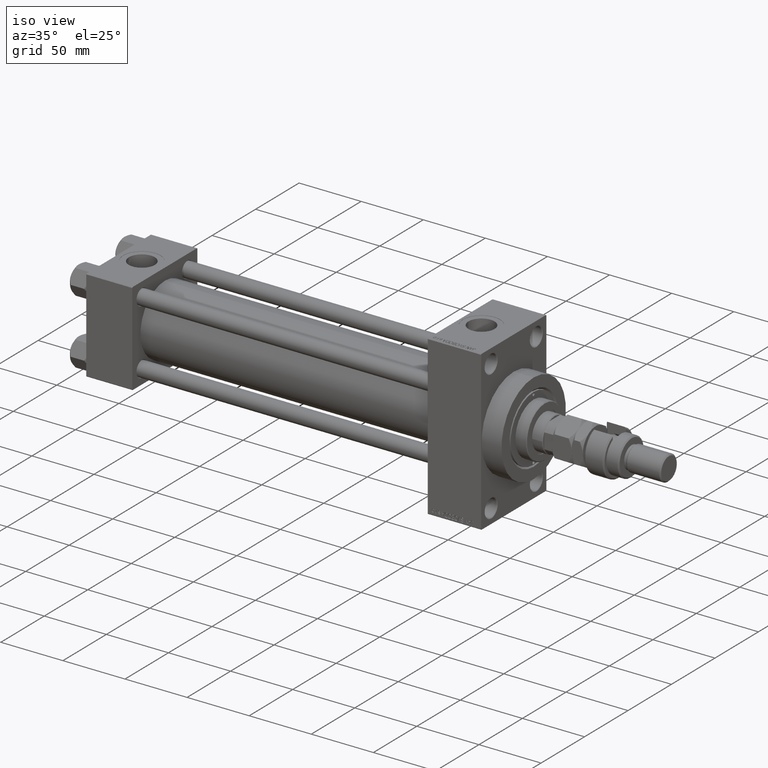
[diagram: clean part render]
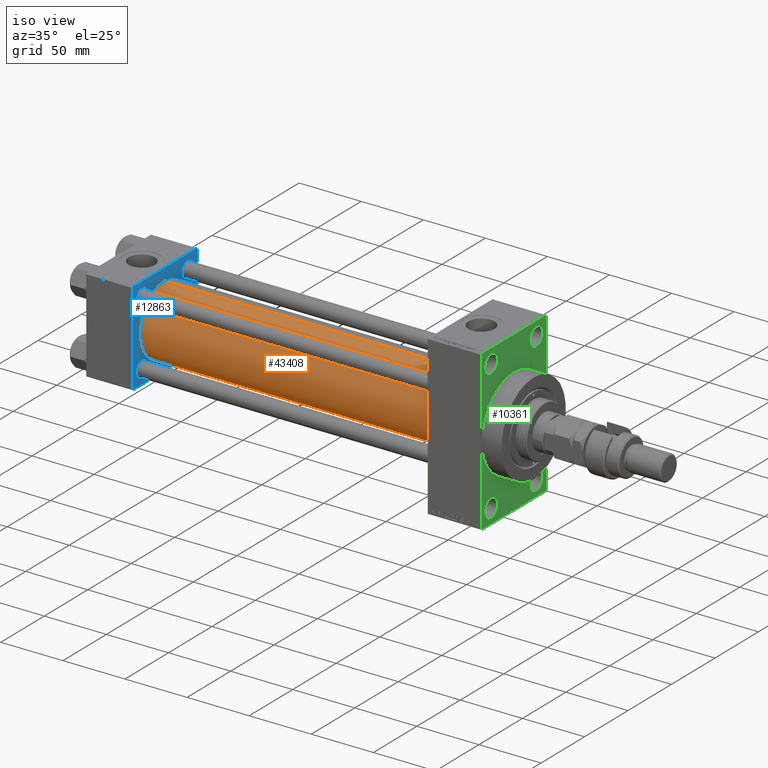
[diagram: same view with three faces highlighted in distinct colors, each labeled with its STEP entity id]
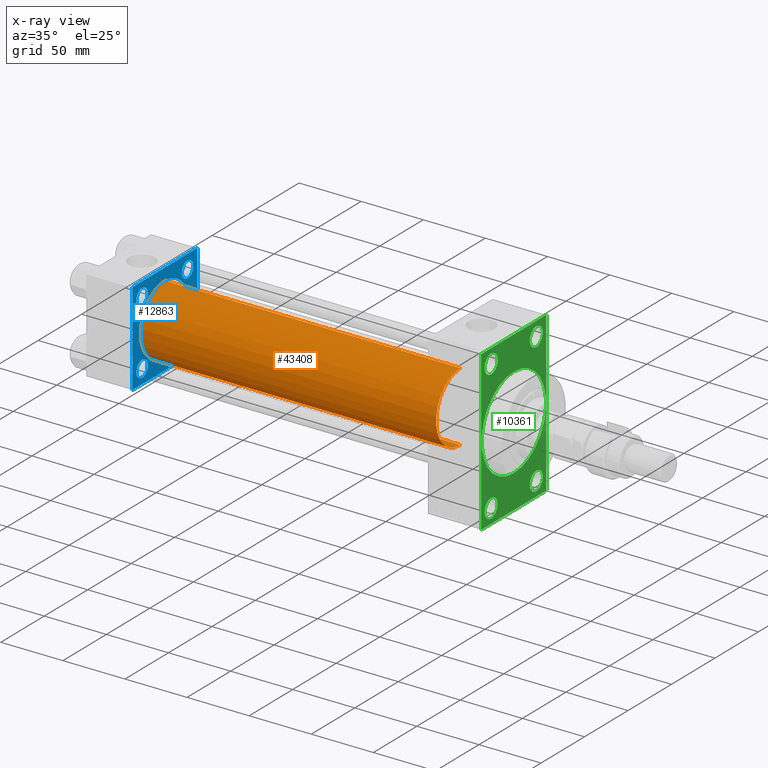
[diagram: x-ray of the same camera — body ghosted, the three highlighted faces saturated]
A machine part, iso view with three faces highlighted in distinct colors.
The next image is the same camera in x-ray (body ghosted, the three faces saturated) — at least one of them is partly hidden behind the body in this view.
Their STEP definitions:

[orange] entity #43408 — the highlighted cylindrical surface (partial cylindrical patch) has radius 28 mm, axis along (-1, -0, -0).
#789 = VERTEX_POINT ( 'NONE', #42937 ) ;
#2371 = DIRECTION ( 'NONE',  ( 1.000000000000000000, -0.000000000000000000, 0.000000000000000000 ) ) ;
#3412 = VERTEX_POINT ( 'NONE', #31387 ) ;
#3637 = ORIENTED_EDGE ( 'NONE', *, *, #34938, .F. ) ;
#6817 = LINE ( 'NONE', #15173, #34191 ) ;
#6947 = CYLINDRICAL_SURFACE ( 'NONE', #11629, 28.00000000000000000 ) ;
#7077 = DIRECTION ( 'NONE',  ( -1.000000000000000000, -0.000000000000000000, -0.000000000000000000 ) ) ;
#7687 = CARTESIAN_POINT ( 'NONE',  ( 274.9999999999999432, -2.602085213965210642E-15, 0.000000000000000000 ) ) ;
#7958 = EDGE_LOOP ( 'NONE', ( #3637, #9998, #24079, #14368 ) ) ;
#9998 = ORIENTED_EDGE ( 'NONE', *, *, #23089, .F. ) ;
#11629 = AXIS2_PLACEMENT_3D ( 'NONE', #7687, #15309, #30831 ) ;
#12796 = CARTESIAN_POINT ( 'NONE',  ( 37.00000000000000711, 8.269258236473784371E-16, -28.00000000000000000 ) ) ;
#13583 = VECTOR ( 'NONE', #7077, 1000.000000000000000 ) ;
#14368 = ORIENTED_EDGE ( 'NONE', *, *, #49716, .T. ) ;
#15063 = FACE_OUTER_BOUND ( 'NONE', #7958, .T. ) ;
#15173 = CARTESIAN_POINT ( 'NONE',  ( 274.9999999999999432, 8.269258236473784371E-16, -28.00000000000000000 ) ) ;
#15309 = DIRECTION ( 'NONE',  ( -1.000000000000000000, -0.000000000000000000, -0.000000000000000000 ) ) ;
#15354 = DIRECTION ( 'NONE',  ( 1.000000000000000000, 0.000000000000000000, 0.000000000000000000 ) ) ;
#17427 = CIRCLE ( 'NONE', #31232, 28.00000000000000000 ) ;
#18618 = DIRECTION ( 'NONE',  ( 0.000000000000000000, 0.000000000000000000, 1.000000000000000000 ) ) ;
#19009 = CARTESIAN_POINT ( 'NONE',  ( 274.9999999999999432, -2.602085213965210642E-15, 28.00000000000000000 ) ) ;
#19301 = VERTEX_POINT ( 'NONE', #12796 ) ;
#19361 = AXIS2_PLACEMENT_3D ( 'NONE', #30629, #15354, #27044 ) ;
#21030 = EDGE_CURVE ( 'NONE', #42798, #3412, #41893, .T. ) ;
#22064 = DIRECTION ( 'NONE',  ( -1.000000000000000000, -0.000000000000000000, -0.000000000000000000 ) ) ;
#23089 = EDGE_CURVE ( 'NONE', #42798, #789, #41279, .T. ) ;
#24079 = ORIENTED_EDGE ( 'NONE', *, *, #21030, .T. ) ;
#26624 = CARTESIAN_POINT ( 'NONE',  ( 274.9999999999999432, -2.602085213965210642E-15, 28.00000000000000000 ) ) ;
#27044 = DIRECTION ( 'NONE',  ( 0.000000000000000000, 0.000000000000000000, -1.000000000000000000 ) ) ;
#30629 = CARTESIAN_POINT ( 'NONE',  ( 274.9999999999999432, -2.602085213965210642E-15, 0.000000000000000000 ) ) ;
#30831 = DIRECTION ( 'NONE',  ( 0.000000000000000000, 0.000000000000000000, 1.000000000000000000 ) ) ;
#31232 = AXIS2_PLACEMENT_3D ( 'NONE', #38190, #2371, #18618 ) ;
#31387 = CARTESIAN_POINT ( 'NONE',  ( 37.00000000000000711, -2.602085213965210642E-15, 28.00000000000000000 ) ) ;
#34191 = VECTOR ( 'NONE', #22064, 1000.000000000000000 ) ;
#34938 = EDGE_CURVE ( 'NONE', #789, #19301, #6817, .T. ) ;
#38190 = CARTESIAN_POINT ( 'NONE',  ( 37.00000000000000711, -2.602085213965210642E-15, 0.000000000000000000 ) ) ;
#41279 = CIRCLE ( 'NONE', #19361, 28.00000000000000000 ) ;
#41893 = LINE ( 'NONE', #19009, #13583 ) ;
#42798 = VERTEX_POINT ( 'NONE', #26624 ) ;
#42937 = CARTESIAN_POINT ( 'NONE',  ( 274.9999999999999432, 8.269258236473784371E-16, -28.00000000000000000 ) ) ;
#43408 = ADVANCED_FACE ( 'NONE', ( #15063 ), #6947, .T. ) ;
#49716 = EDGE_CURVE ( 'NONE', #3412, #19301, #17427, .T. ) ;

[blue] entity #12863 — the highlighted planar face has unit normal (-1, 0, 0).
#452 = DIRECTION ( 'NONE',  ( 0.000000000000000000, -1.000000000000000000, -9.251858538542972814E-17 ) ) ;
#610 = DIRECTION ( 'NONE',  ( -1.000000000000000000, 0.000000000000000000, -0.000000000000000000 ) ) ;
#679 = CARTESIAN_POINT ( 'NONE',  ( 37.00000000000000000, -37.00000000000002132, -37.50000000000000711 ) ) ;
#1139 = DIRECTION ( 'NONE',  ( -1.000000000000000000, 0.000000000000000000, -0.000000000000000000 ) ) ;
#1637 = FACE_BOUND ( 'NONE', #18224, .T. ) ;
#1996 = ORIENTED_EDGE ( 'NONE', *, *, #23731, .T. ) ;
#2266 = DIRECTION ( 'NONE',  ( 1.000000000000000000, -0.000000000000000000, 0.000000000000000000 ) ) ;
#2371 = DIRECTION ( 'NONE',  ( 1.000000000000000000, -0.000000000000000000, 0.000000000000000000 ) ) ;
#2382 = ORIENTED_EDGE ( 'NONE', *, *, #31339, .T. ) ;
#2601 = ORIENTED_EDGE ( 'NONE', *, *, #36744, .T. ) ;
#2953 = ORIENTED_EDGE ( 'NONE', *, *, #36542, .T. ) ;
#3045 = EDGE_LOOP ( 'NONE', ( #2953, #22239 ) ) ;
#3331 = EDGE_CURVE ( 'NONE', #36047, #5932, #3439, .T. ) ;
#3412 = VERTEX_POINT ( 'NONE', #31387 ) ;
#3439 = LINE ( 'NONE', #18688, #37603 ) ;
#3545 = DIRECTION ( 'NONE',  ( 0.000000000000000000, 0.000000000000000000, 1.000000000000000000 ) ) ;
#3815 = EDGE_LOOP ( 'NONE', ( #34192, #18012 ) ) ;
#4091 = EDGE_LOOP ( 'NONE', ( #29457, #36168, #4539, #38114, #17212, #2601, #2382, #1996 ) ) ;
#4129 = VECTOR ( 'NONE', #25688, 1000.000000000000114 ) ;
#4539 = ORIENTED_EDGE ( 'NONE', *, *, #3331, .F. ) ;
#5023 = CARTESIAN_POINT ( 'NONE',  ( 37.00000000000000000, -26.14999999999999147, 19.64999999999994529 ) ) ;
#5364 = CARTESIAN_POINT ( 'NONE',  ( 37.00000000000000000, 26.14999999999999858, -26.15000000000000213 ) ) ;
#5932 = VERTEX_POINT ( 'NONE', #7774 ) ;
#6129 = CARTESIAN_POINT ( 'NONE',  ( 37.00000000000000000, 37.49999999999999289, 37.50000000000000000 ) ) ;
#6329 = ORIENTED_EDGE ( 'NONE', *, *, #45339, .T. ) ;
#6474 = EDGE_CURVE ( 'NONE', #10900, #35810, #18107, .T. ) ;
#6591 = VERTEX_POINT ( 'NONE', #43663 ) ;
#6609 = DIRECTION ( 'NONE',  ( 0.000000000000000000, 0.000000000000000000, 1.000000000000000000 ) ) ;
#6662 = EDGE_LOOP ( 'NONE', ( #6329, #46490 ) ) ;
#6858 = CARTESIAN_POINT ( 'NONE',  ( 37.00000000000000000, 26.14999999999999858, 26.15000000000000213 ) ) ;
#7140 = ORIENTED_EDGE ( 'NONE', *, *, #40131, .T. ) ;
#7774 = CARTESIAN_POINT ( 'NONE',  ( 37.00000000000000000, 37.49999999999999289, -36.99999999999998579 ) ) ;
#8131 = CARTESIAN_POINT ( 'NONE',  ( 37.00000000000000000, -37.50000000000000000, -37.00000000000003553 ) ) ;
#9080 = LINE ( 'NONE', #44923, #32513 ) ;
#9248 = FACE_BOUND ( 'NONE', #3815, .T. ) ;
#9502 = FACE_BOUND ( 'NONE', #6662, .T. ) ;
#9637 = AXIS2_PLACEMENT_3D ( 'NONE', #20184, #1139, #19681 ) ;
#9661 = LINE ( 'NONE', #25175, #4129 ) ;
#9916 = LINE ( 'NONE', #6129, #31754 ) ;
#10014 = CARTESIAN_POINT ( 'NONE',  ( 37.00000000000000000, 0.000000000000000000, 0.000000000000000000 ) ) ;
#10474 = CIRCLE ( 'NONE', #33209, 6.500000000000113687 ) ;
#10563 = ORIENTED_EDGE ( 'NONE', *, *, #49716, .F. ) ;
#10657 = DIRECTION ( 'NONE',  ( 0.000000000000000000, 0.000000000000000000, 1.000000000000000000 ) ) ;
#10900 = VERTEX_POINT ( 'NONE', #46629 ) ;
#11372 = EDGE_CURVE ( 'NONE', #19301, #3412, #22364, .T. ) ;
#11380 = CIRCLE ( 'NONE', #17056, 6.500000000000113687 ) ;
#11633 = CARTESIAN_POINT ( 'NONE',  ( 37.00000000000000000, 37.49999999999999289, -37.50000000000000000 ) ) ;
#12244 = EDGE_CURVE ( 'NONE', #18768, #5932, #44520, .T. ) ;
#12602 = LINE ( 'NONE', #679, #41320 ) ;
#12796 = CARTESIAN_POINT ( 'NONE',  ( 37.00000000000000711, 8.269258236473784371E-16, -28.00000000000000000 ) ) ;
#12863 = ADVANCED_FACE ( 'NONE', ( #25274, #32650, #9502, #9248, #1637, #25018 ), #28832, .F. ) ;
#13319 = DIRECTION ( 'NONE',  ( -1.000000000000000000, 0.000000000000000000, -0.000000000000000000 ) ) ;
#14034 = CARTESIAN_POINT ( 'NONE',  ( 37.00000000000000000, -26.14999999999999147, -19.64999999999995239 ) ) ;
#14146 = CARTESIAN_POINT ( 'NONE',  ( 37.00000000000000000, 37.49999999999999289, 37.00000000000000000 ) ) ;
#14180 = CARTESIAN_POINT ( 'NONE',  ( 37.00000000000000000, 36.99999999999999289, 37.50000000000000000 ) ) ;
#15947 = EDGE_CURVE ( 'NONE', #18768, #30600, #31461, .T. ) ;
#17056 = AXIS2_PLACEMENT_3D ( 'NONE', #38360, #45985, #6609 ) ;
#17155 = CARTESIAN_POINT ( 'NONE',  ( 37.00000000000000000, -37.00000000000000711, 37.49999999999999289 ) ) ;
#17212 = ORIENTED_EDGE ( 'NONE', *, *, #34606, .T. ) ;
#17377 = DIRECTION ( 'NONE',  ( -0.000000000000000000, 0.000000000000000000, 1.000000000000000000 ) ) ;
#17427 = CIRCLE ( 'NONE', #31232, 28.00000000000000000 ) ;
#17565 = DIRECTION ( 'NONE',  ( -0.000000000000000000, 0.7071067811865474617, 0.7071067811865474617 ) ) ;
#18012 = ORIENTED_EDGE ( 'NONE', *, *, #6474, .T. ) ;
#18107 = CIRCLE ( 'NONE', #29475, 6.500000000000113687 ) ;
#18224 = EDGE_LOOP ( 'NONE', ( #10563, #43687 ) ) ;
#18353 = CARTESIAN_POINT ( 'NONE',  ( 37.00000000000000000, -37.00000000000002132, -37.50000000000000711 ) ) ;
#18618 = DIRECTION ( 'NONE',  ( 0.000000000000000000, 0.000000000000000000, 1.000000000000000000 ) ) ;
#18688 = CARTESIAN_POINT ( 'NONE',  ( 37.00000000000000000, 37.49999999999999289, 37.50000000000000000 ) ) ;
#18768 = VERTEX_POINT ( 'NONE', #33775 ) ;
#18801 = VERTEX_POINT ( 'NONE', #14180 ) ;
#19301 = VERTEX_POINT ( 'NONE', #12796 ) ;
#19681 = DIRECTION ( 'NONE',  ( 0.000000000000000000, 0.000000000000000000, 1.000000000000000000 ) ) ;
#20103 = DIRECTION ( 'NONE',  ( -1.000000000000000000, 0.000000000000000000, -0.000000000000000000 ) ) ;
#20184 = CARTESIAN_POINT ( 'NONE',  ( 37.00000000000000000, -26.14999999999999147, 26.15000000000000924 ) ) ;
#20419 = DIRECTION ( 'NONE',  ( 0.000000000000000000, 0.000000000000000000, 1.000000000000000000 ) ) ;
#21118 = VERTEX_POINT ( 'NONE', #45295 ) ;
#22239 = ORIENTED_EDGE ( 'NONE', *, *, #31438, .T. ) ;
#22278 = AXIS2_PLACEMENT_3D ( 'NONE', #43111, #23804, #32946 ) ;
#22364 = CIRCLE ( 'NONE', #32088, 28.00000000000000000 ) ;
#22722 = CARTESIAN_POINT ( 'NONE',  ( 37.00000000000000000, 26.14999999999999858, -19.64999999999988844 ) ) ;
#23012 = DIRECTION ( 'NONE',  ( 0.000000000000000000, 0.000000000000000000, -1.000000000000000000 ) ) ;
#23548 = EDGE_CURVE ( 'NONE', #35810, #10900, #10474, .T. ) ;
#23731 = EDGE_CURVE ( 'NONE', #46744, #30600, #12602, .T. ) ;
#23804 = DIRECTION ( 'NONE',  ( -1.000000000000000000, 0.000000000000000000, -0.000000000000000000 ) ) ;
#24336 = CARTESIAN_POINT ( 'NONE',  ( 37.00000000000000000, 26.14999999999999858, 19.64999999999988489 ) ) ;
#24458 = CARTESIAN_POINT ( 'NONE',  ( 37.00000000000000000, 37.49999999999999289, -36.99999999999998579 ) ) ;
#25018 = FACE_OUTER_BOUND ( 'NONE', #4091, .T. ) ;
#25141 = VECTOR ( 'NONE', #41497, 1000.000000000000000 ) ;
#25175 = CARTESIAN_POINT ( 'NONE',  ( 37.00000000000000000, 36.99999999999999289, 37.50000000000000000 ) ) ;
#25274 = FACE_BOUND ( 'NONE', #30565, .T. ) ;
#25688 = DIRECTION ( 'NONE',  ( 0.000000000000000000, -0.7071067811865474617, 0.7071067811865474617 ) ) ;
#26222 = VERTEX_POINT ( 'NONE', #14034 ) ;
#27803 = CARTESIAN_POINT ( 'NONE',  ( 37.00000000000000000, -26.14999999999999147, -26.15000000000000924 ) ) ;
#28730 = CIRCLE ( 'NONE', #44136, 6.500000000000057732 ) ;
#28832 = PLANE ( 'NONE',  #41832 ) ;
#28884 = VECTOR ( 'NONE', #17565, 1000.000000000000114 ) ;
#29056 = CARTESIAN_POINT ( 'NONE',  ( 37.00000000000000000, -37.50000000000000711, 37.49999999999999289 ) ) ;
#29457 = ORIENTED_EDGE ( 'NONE', *, *, #15947, .F. ) ;
#29475 = AXIS2_PLACEMENT_3D ( 'NONE', #6858, #41668, #10657 ) ;
#29590 = EDGE_CURVE ( 'NONE', #6591, #33262, #31581, .T. ) ;
#30013 = DIRECTION ( 'NONE',  ( 0.000000000000000000, -1.000000000000000000, -9.251858538542971581E-17 ) ) ;
#30565 = EDGE_LOOP ( 'NONE', ( #7140, #36355 ) ) ;
#30600 = VERTEX_POINT ( 'NONE', #18353 ) ;
#31232 = AXIS2_PLACEMENT_3D ( 'NONE', #38190, #2371, #18618 ) ;
#31339 = EDGE_CURVE ( 'NONE', #21118, #46744, #48619, .T. ) ;
#31387 = CARTESIAN_POINT ( 'NONE',  ( 37.00000000000000711, -2.602085213965210642E-15, 28.00000000000000000 ) ) ;
#31438 = EDGE_CURVE ( 'NONE', #36312, #33604, #31640, .T. ) ;
#31461 = LINE ( 'NONE', #11633, #36278 ) ;
#31581 = CIRCLE ( 'NONE', #9637, 6.500000000000064837 ) ;
#31640 = CIRCLE ( 'NONE', #35702, 6.500000000000113687 ) ;
#31754 = VECTOR ( 'NONE', #30013, 1000.000000000000000 ) ;
#31852 = AXIS2_PLACEMENT_3D ( 'NONE', #27803, #610, #20419 ) ;
#32088 = AXIS2_PLACEMENT_3D ( 'NONE', #48521, #2266, #33285 ) ;
#32513 = VECTOR ( 'NONE', #36536, 1000.000000000000114 ) ;
#32650 = FACE_BOUND ( 'NONE', #3045, .T. ) ;
#32946 = DIRECTION ( 'NONE',  ( 0.000000000000000000, 0.000000000000000000, 1.000000000000000000 ) ) ;
#33209 = AXIS2_PLACEMENT_3D ( 'NONE', #39431, #20103, #35628 ) ;
#33262 = VERTEX_POINT ( 'NONE', #5023 ) ;
#33285 = DIRECTION ( 'NONE',  ( 0.000000000000000000, 0.000000000000000000, 1.000000000000000000 ) ) ;
#33604 = VERTEX_POINT ( 'NONE', #37925 ) ;
#33775 = CARTESIAN_POINT ( 'NONE',  ( 37.00000000000000000, 36.99999999999997868, -37.50000000000000000 ) ) ;
#34192 = ORIENTED_EDGE ( 'NONE', *, *, #23548, .T. ) ;
#34534 = EDGE_CURVE ( 'NONE', #36047, #18801, #9661, .T. ) ;
#34606 = EDGE_CURVE ( 'NONE', #18801, #39946, #9916, .T. ) ;
#35395 = VERTEX_POINT ( 'NONE', #44271 ) ;
#35628 = DIRECTION ( 'NONE',  ( 0.000000000000000000, 0.000000000000000000, 1.000000000000000000 ) ) ;
#35702 = AXIS2_PLACEMENT_3D ( 'NONE', #5364, #39929, #43745 ) ;
#35810 = VERTEX_POINT ( 'NONE', #24336 ) ;
#36047 = VERTEX_POINT ( 'NONE', #14146 ) ;
#36168 = ORIENTED_EDGE ( 'NONE', *, *, #12244, .T. ) ;
#36278 = VECTOR ( 'NONE', #452, 1000.000000000000000 ) ;
#36312 = VERTEX_POINT ( 'NONE', #22722 ) ;
#36355 = ORIENTED_EDGE ( 'NONE', *, *, #44083, .T. ) ;
#36536 = DIRECTION ( 'NONE',  ( -0.000000000000000000, -0.7071067811865474617, -0.7071067811865474617 ) ) ;
#36542 = EDGE_CURVE ( 'NONE', #33604, #36312, #11380, .T. ) ;
#36744 = EDGE_CURVE ( 'NONE', #39946, #21118, #9080, .T. ) ;
#37603 = VECTOR ( 'NONE', #23012, 1000.000000000000000 ) ;
#37925 = CARTESIAN_POINT ( 'NONE',  ( 37.00000000000000000, 26.14999999999999858, -32.65000000000011937 ) ) ;
#38114 = ORIENTED_EDGE ( 'NONE', *, *, #34534, .T. ) ;
#38190 = CARTESIAN_POINT ( 'NONE',  ( 37.00000000000000711, -2.602085213965210642E-15, 0.000000000000000000 ) ) ;
#38360 = CARTESIAN_POINT ( 'NONE',  ( 37.00000000000000000, 26.14999999999999858, -26.15000000000000213 ) ) ;
#39431 = CARTESIAN_POINT ( 'NONE',  ( 37.00000000000000000, 26.14999999999999858, 26.15000000000000213 ) ) ;
#39929 = DIRECTION ( 'NONE',  ( -1.000000000000000000, 0.000000000000000000, -0.000000000000000000 ) ) ;
#39946 = VERTEX_POINT ( 'NONE', #17155 ) ;
#40131 = EDGE_CURVE ( 'NONE', #35395, #26222, #44004, .T. ) ;
#41320 = VECTOR ( 'NONE', #47428, 1000.000000000000000 ) ;
#41497 = DIRECTION ( 'NONE',  ( 0.000000000000000000, 9.251858538542971581E-17, -1.000000000000000000 ) ) ;
#41668 = DIRECTION ( 'NONE',  ( -1.000000000000000000, 0.000000000000000000, -0.000000000000000000 ) ) ;
#41832 = AXIS2_PLACEMENT_3D ( 'NONE', #10014, #13319, #17377 ) ;
#42670 = DIRECTION ( 'NONE',  ( -1.000000000000000000, 0.000000000000000000, -0.000000000000000000 ) ) ;
#43111 = CARTESIAN_POINT ( 'NONE',  ( 37.00000000000000000, -26.14999999999999147, 26.15000000000000924 ) ) ;
#43663 = CARTESIAN_POINT ( 'NONE',  ( 37.00000000000000000, -26.14999999999999147, 32.65000000000007674 ) ) ;
#43687 = ORIENTED_EDGE ( 'NONE', *, *, #11372, .F. ) ;
#43745 = DIRECTION ( 'NONE',  ( 0.000000000000000000, 0.000000000000000000, 1.000000000000000000 ) ) ;
#44004 = CIRCLE ( 'NONE', #31852, 6.500000000000057732 ) ;
#44083 = EDGE_CURVE ( 'NONE', #26222, #35395, #28730, .T. ) ;
#44136 = AXIS2_PLACEMENT_3D ( 'NONE', #45494, #42670, #3545 ) ;
#44271 = CARTESIAN_POINT ( 'NONE',  ( 37.00000000000000000, -26.14999999999999147, -32.65000000000006963 ) ) ;
#44520 = LINE ( 'NONE', #24458, #28884 ) ;
#44923 = CARTESIAN_POINT ( 'NONE',  ( 37.00000000000000000, -37.50000000000000711, 36.99999999999999289 ) ) ;
#45030 = CIRCLE ( 'NONE', #22278, 6.500000000000064837 ) ;
#45295 = CARTESIAN_POINT ( 'NONE',  ( 37.00000000000000000, -37.50000000000000711, 36.99999999999999289 ) ) ;
#45339 = EDGE_CURVE ( 'NONE', #33262, #6591, #45030, .T. ) ;
#45494 = CARTESIAN_POINT ( 'NONE',  ( 37.00000000000000000, -26.14999999999999147, -26.15000000000000924 ) ) ;
#45985 = DIRECTION ( 'NONE',  ( -1.000000000000000000, 0.000000000000000000, -0.000000000000000000 ) ) ;
#46490 = ORIENTED_EDGE ( 'NONE', *, *, #29590, .T. ) ;
#46629 = CARTESIAN_POINT ( 'NONE',  ( 37.00000000000000000, 26.14999999999999858, 32.65000000000012648 ) ) ;
#46744 = VERTEX_POINT ( 'NONE', #8131 ) ;
#47428 = DIRECTION ( 'NONE',  ( 0.000000000000000000, 0.7071067811865524577, -0.7071067811865426878 ) ) ;
#48521 = CARTESIAN_POINT ( 'NONE',  ( 37.00000000000000711, -2.602085213965210642E-15, 0.000000000000000000 ) ) ;
#48619 = LINE ( 'NONE', #29056, #25141 ) ;
#49716 = EDGE_CURVE ( 'NONE', #3412, #19301, #17427, .T. ) ;

[green] entity #10361 — the highlighted planar face has unit normal (-1, 0, 0).
#94 = EDGE_CURVE ( 'NONE', #11402, #31664, #19236, .T. ) ;
#262 = DIRECTION ( 'NONE',  ( -1.000000000000000000, 0.000000000000000000, -0.000000000000000000 ) ) ;
#398 = CARTESIAN_POINT ( 'NONE',  ( 317.9999999999999432, 37.50000000000000000, 63.49999999999992895 ) ) ;
#431 = AXIS2_PLACEMENT_3D ( 'NONE', #24078, #50275, #46211 ) ;
#847 = ORIENTED_EDGE ( 'NONE', *, *, #23610, .T. ) ;
#902 = LINE ( 'NONE', #31916, #20884 ) ;
#941 = AXIS2_PLACEMENT_3D ( 'NONE', #29349, #21198, #14328 ) ;
#1409 = EDGE_CURVE ( 'NONE', #6010, #31664, #31383, .T. ) ;
#1440 = VECTOR ( 'NONE', #7325, 1000.000000000000000 ) ;
#1505 = FACE_BOUND ( 'NONE', #34808, .T. ) ;
#2413 = CARTESIAN_POINT ( 'NONE',  ( 317.9999999999999432, -36.99999999999992895, 63.99999999999997158 ) ) ;
#2613 = CARTESIAN_POINT ( 'NONE',  ( 317.9999999999999432, 4.531193156845206793E-15, -37.00000000000000000 ) ) ;
#2773 = EDGE_LOOP ( 'NONE', ( #41805, #35632 ) ) ;
#2894 = ORIENTED_EDGE ( 'NONE', *, *, #47147, .T. ) ;
#3404 = DIRECTION ( 'NONE',  ( 0.000000000000000000, 0.000000000000000000, -1.000000000000000000 ) ) ;
#3764 = CARTESIAN_POINT ( 'NONE',  ( 317.9999999999999432, 36.99999999999999289, -64.00000000000000000 ) ) ;
#5024 = DIRECTION ( 'NONE',  ( 1.000000000000000000, 0.000000000000000000, 0.000000000000000000 ) ) ;
#5308 = VERTEX_POINT ( 'NONE', #49354 ) ;
#5466 = CIRCLE ( 'NONE', #8698, 7.500000000000007105 ) ;
#5481 = AXIS2_PLACEMENT_3D ( 'NONE', #28157, #5024, #28656 ) ;
#5563 = DIRECTION ( 'NONE',  ( -1.000000000000000000, 0.000000000000000000, -0.000000000000000000 ) ) ;
#6010 = VERTEX_POINT ( 'NONE', #398 ) ;
#6033 = CARTESIAN_POINT ( 'NONE',  ( 317.9999999999999432, -25.99999999999999645, -60.00000000000000000 ) ) ;
#7036 = VECTOR ( 'NONE', #37443, 1000.000000000000000 ) ;
#7315 = VERTEX_POINT ( 'NONE', #7587 ) ;
#7325 = DIRECTION ( 'NONE',  ( 0.000000000000000000, 0.000000000000000000, -1.000000000000000000 ) ) ;
#7587 = CARTESIAN_POINT ( 'NONE',  ( 317.9999999999999432, 26.00000000000000000, 44.99999999999998579 ) ) ;
#7718 = CARTESIAN_POINT ( 'NONE',  ( 317.9999999999999432, 0.000000000000000000, 0.000000000000000000 ) ) ;
#8221 = EDGE_LOOP ( 'NONE', ( #34404, #31683, #48325, #41855, #22177, #26073, #20786, #40481 ) ) ;
#8318 = DIRECTION ( 'NONE',  ( -1.000000000000000000, 0.000000000000000000, -0.000000000000000000 ) ) ;
#8698 = AXIS2_PLACEMENT_3D ( 'NONE', #31286, #19818, #39647 ) ;
#9364 = FACE_OUTER_BOUND ( 'NONE', #8221, .T. ) ;
#9374 = CIRCLE ( 'NONE', #47519, 7.500000000000007105 ) ;
#9781 = CARTESIAN_POINT ( 'NONE',  ( 317.9999999999999432, -36.99999999999993605, -64.00000000000001421 ) ) ;
#10130 = FACE_BOUND ( 'NONE', #44378, .T. ) ;
#10154 = EDGE_CURVE ( 'NONE', #17078, #12510, #29593, .T. ) ;
#10209 = ORIENTED_EDGE ( 'NONE', *, *, #10154, .T. ) ;
#10361 = ADVANCED_FACE ( 'NONE', ( #13939, #1505, #29463, #10130, #48011, #9364 ), #24880, .F. ) ;
#10526 = CARTESIAN_POINT ( 'NONE',  ( 317.9999999999999432, -25.99999999999999645, 52.50000000000000000 ) ) ;
#11112 = CARTESIAN_POINT ( 'NONE',  ( 317.9999999999999432, -25.99999999999999645, 52.50000000000000000 ) ) ;
#11231 = VERTEX_POINT ( 'NONE', #11933 ) ;
#11252 = LINE ( 'NONE', #42258, #37122 ) ;
#11256 = VERTEX_POINT ( 'NONE', #43446 ) ;
#11402 = VERTEX_POINT ( 'NONE', #3764 ) ;
#11628 = DIRECTION ( 'NONE',  ( 0.000000000000000000, 0.000000000000000000, 1.000000000000000000 ) ) ;
#11707 = LINE ( 'NONE', #12704, #16076 ) ;
#11933 = CARTESIAN_POINT ( 'NONE',  ( 317.9999999999999432, 26.00000000000000000, 60.00000000000000000 ) ) ;
#12320 = CARTESIAN_POINT ( 'NONE',  ( 317.9999999999999432, 26.00000000000000000, -44.99999999999998579 ) ) ;
#12510 = VERTEX_POINT ( 'NONE', #17188 ) ;
#12704 = CARTESIAN_POINT ( 'NONE',  ( 317.9999999999999432, -36.99999999999993605, -64.00000000000001421 ) ) ;
#13179 = EDGE_CURVE ( 'NONE', #11256, #5308, #49965, .T. ) ;
#13939 = FACE_BOUND ( 'NONE', #39255, .T. ) ;
#14328 = DIRECTION ( 'NONE',  ( 0.000000000000000000, 0.000000000000000000, 1.000000000000000000 ) ) ;
#14450 = EDGE_CURVE ( 'NONE', #25958, #17652, #44554, .T. ) ;
#15192 = CARTESIAN_POINT ( 'NONE',  ( 317.9999999999999432, -37.49999999999999289, 63.99999999999997158 ) ) ;
#15317 = DIRECTION ( 'NONE',  ( 0.000000000000000000, -1.000000000000000000, -1.850371707708594563E-16 ) ) ;
#15769 = AXIS2_PLACEMENT_3D ( 'NONE', #35076, #262, #23631 ) ;
#16076 = VECTOR ( 'NONE', #35348, 999.9999999999998863 ) ;
#16615 = EDGE_CURVE ( 'NONE', #12510, #17078, #5466, .T. ) ;
#17078 = VERTEX_POINT ( 'NONE', #12320 ) ;
#17188 = CARTESIAN_POINT ( 'NONE',  ( 317.9999999999999432, 26.00000000000000000, -60.00000000000000000 ) ) ;
#17395 = DIRECTION ( 'NONE',  ( 0.000000000000000000, 0.000000000000000000, 1.000000000000000000 ) ) ;
#17652 = VERTEX_POINT ( 'NONE', #29171 ) ;
#18219 = VERTEX_POINT ( 'NONE', #2613 ) ;
#18876 = DIRECTION ( 'NONE',  ( -1.000000000000000000, 0.000000000000000000, -0.000000000000000000 ) ) ;
#19236 = LINE ( 'NONE', #42622, #44750 ) ;
#19818 = DIRECTION ( 'NONE',  ( -1.000000000000000000, 0.000000000000000000, -0.000000000000000000 ) ) ;
#19915 = CARTESIAN_POINT ( 'NONE',  ( 317.9999999999999432, 37.50000000000000000, 63.99999999999998579 ) ) ;
#20198 = EDGE_CURVE ( 'NONE', #48645, #25958, #11252, .T. ) ;
#20771 = AXIS2_PLACEMENT_3D ( 'NONE', #10526, #33184, #17395 ) ;
#20786 = ORIENTED_EDGE ( 'NONE', *, *, #20198, .T. ) ;
#20884 = VECTOR ( 'NONE', #39774, 1000.000000000000114 ) ;
#20924 = EDGE_CURVE ( 'NONE', #17652, #34565, #34531, .T. ) ;
#21060 = DIRECTION ( 'NONE',  ( -0.000000000000000000, 0.000000000000000000, 1.000000000000000000 ) ) ;
#21194 = EDGE_CURVE ( 'NONE', #34565, #31035, #11707, .T. ) ;
#21198 = DIRECTION ( 'NONE',  ( -1.000000000000000000, 0.000000000000000000, -0.000000000000000000 ) ) ;
#21328 = VERTEX_POINT ( 'NONE', #25416 ) ;
#22177 = ORIENTED_EDGE ( 'NONE', *, *, #1409, .F. ) ;
#23568 = CARTESIAN_POINT ( 'NONE',  ( 317.9999999999999432, 26.00000000000000000, 52.49999999999999289 ) ) ;
#23610 = EDGE_CURVE ( 'NONE', #5308, #11256, #42943, .T. ) ;
#23631 = DIRECTION ( 'NONE',  ( 0.000000000000000000, 0.000000000000000000, 1.000000000000000000 ) ) ;
#24078 = CARTESIAN_POINT ( 'NONE',  ( 317.9999999999999432, -25.99999999999999645, -52.49999999999999289 ) ) ;
#24261 = AXIS2_PLACEMENT_3D ( 'NONE', #11112, #45448, #34019 ) ;
#24880 = PLANE ( 'NONE',  #33685 ) ;
#25416 = CARTESIAN_POINT ( 'NONE',  ( 317.9999999999999432, -25.99999999999999645, -44.99999999999998579 ) ) ;
#25564 = EDGE_CURVE ( 'NONE', #18219, #28068, #25774, .T. ) ;
#25774 = CIRCLE ( 'NONE', #5481, 37.00000000000000000 ) ;
#25803 = EDGE_CURVE ( 'NONE', #6010, #48645, #902, .T. ) ;
#25958 = VERTEX_POINT ( 'NONE', #2413 ) ;
#25971 = ORIENTED_EDGE ( 'NONE', *, *, #35136, .T. ) ;
#25989 = AXIS2_PLACEMENT_3D ( 'NONE', #39184, #18876, #30589 ) ;
#26073 = ORIENTED_EDGE ( 'NONE', *, *, #25803, .T. ) ;
#27029 = DIRECTION ( 'NONE',  ( 1.000000000000000000, 0.000000000000000000, 0.000000000000000000 ) ) ;
#28068 = VERTEX_POINT ( 'NONE', #38888 ) ;
#28157 = CARTESIAN_POINT ( 'NONE',  ( 317.9999999999999432, 0.000000000000000000, 0.000000000000000000 ) ) ;
#28656 = DIRECTION ( 'NONE',  ( 0.000000000000000000, 0.000000000000000000, -1.000000000000000000 ) ) ;
#29171 = CARTESIAN_POINT ( 'NONE',  ( 317.9999999999999432, -37.49999999999999289, 63.49999999999991473 ) ) ;
#29349 = CARTESIAN_POINT ( 'NONE',  ( 317.9999999999999432, 26.00000000000000000, 52.49999999999999289 ) ) ;
#29463 = FACE_BOUND ( 'NONE', #37620, .T. ) ;
#29546 = DIRECTION ( 'NONE',  ( 0.000000000000000000, -1.000000000000000000, -1.850371707708594563E-16 ) ) ;
#29593 = CIRCLE ( 'NONE', #15769, 7.500000000000007105 ) ;
#30589 = DIRECTION ( 'NONE',  ( 0.000000000000000000, 0.000000000000000000, 1.000000000000000000 ) ) ;
#31035 = VERTEX_POINT ( 'NONE', #9781 ) ;
#31286 = CARTESIAN_POINT ( 'NONE',  ( 317.9999999999999432, 26.00000000000000000, -52.49999999999999289 ) ) ;
#31383 = LINE ( 'NONE', #19915, #48039 ) ;
#31595 = CARTESIAN_POINT ( 'NONE',  ( 317.9999999999999432, 36.99999999999994316, 63.99999999999998579 ) ) ;
#31664 = VERTEX_POINT ( 'NONE', #46250 ) ;
#31683 = ORIENTED_EDGE ( 'NONE', *, *, #21194, .T. ) ;
#31797 = ORIENTED_EDGE ( 'NONE', *, *, #13179, .T. ) ;
#31916 = CARTESIAN_POINT ( 'NONE',  ( 317.9999999999999432, 36.99999999999994316, 63.99999999999998579 ) ) ;
#32238 = EDGE_CURVE ( 'NONE', #21328, #47965, #41400, .T. ) ;
#32588 = CIRCLE ( 'NONE', #941, 7.500000000000007105 ) ;
#32593 = LINE ( 'NONE', #44524, #42335 ) ;
#33184 = DIRECTION ( 'NONE',  ( -1.000000000000000000, 0.000000000000000000, -0.000000000000000000 ) ) ;
#33335 = EDGE_CURVE ( 'NONE', #28068, #18219, #33361, .T. ) ;
#33361 = CIRCLE ( 'NONE', #37385, 37.00000000000000000 ) ;
#33685 = AXIS2_PLACEMENT_3D ( 'NONE', #40379, #5563, #21060 ) ;
#34019 = DIRECTION ( 'NONE',  ( 0.000000000000000000, 0.000000000000000000, 1.000000000000000000 ) ) ;
#34404 = ORIENTED_EDGE ( 'NONE', *, *, #20924, .T. ) ;
#34531 = LINE ( 'NONE', #15192, #1440 ) ;
#34565 = VERTEX_POINT ( 'NONE', #45256 ) ;
#34808 = EDGE_LOOP ( 'NONE', ( #2894, #41632 ) ) ;
#34874 = ORIENTED_EDGE ( 'NONE', *, *, #47131, .T. ) ;
#35076 = CARTESIAN_POINT ( 'NONE',  ( 317.9999999999999432, 26.00000000000000000, -52.49999999999999289 ) ) ;
#35136 = EDGE_CURVE ( 'NONE', #7315, #11231, #32588, .T. ) ;
#35313 = EDGE_CURVE ( 'NONE', #11402, #31035, #32593, .T. ) ;
#35331 = CIRCLE ( 'NONE', #431, 7.500000000000007105 ) ;
#35348 = DIRECTION ( 'NONE',  ( 0.000000000000000000, 0.7071067811865574537, -0.7071067811865376918 ) ) ;
#35632 = ORIENTED_EDGE ( 'NONE', *, *, #25564, .F. ) ;
#36202 = DIRECTION ( 'NONE',  ( 0.000000000000000000, -5.421010862427522170E-17, -1.000000000000000000 ) ) ;
#37122 = VECTOR ( 'NONE', #15317, 1000.000000000000000 ) ;
#37385 = AXIS2_PLACEMENT_3D ( 'NONE', #7718, #27029, #3404 ) ;
#37443 = DIRECTION ( 'NONE',  ( -0.000000000000000000, -0.7071067811865524577, -0.7071067811865426878 ) ) ;
#37620 = EDGE_LOOP ( 'NONE', ( #42663, #10209 ) ) ;
#38888 = CARTESIAN_POINT ( 'NONE',  ( 317.9999999999999432, 0.000000000000000000, 37.00000000000000000 ) ) ;
#39184 = CARTESIAN_POINT ( 'NONE',  ( 317.9999999999999432, -25.99999999999999645, -52.49999999999999289 ) ) ;
#39255 = EDGE_LOOP ( 'NONE', ( #847, #31797 ) ) ;
#39647 = DIRECTION ( 'NONE',  ( 0.000000000000000000, 0.000000000000000000, 1.000000000000000000 ) ) ;
#39774 = DIRECTION ( 'NONE',  ( 0.000000000000000000, -0.7071067811865474617, 0.7071067811865474617 ) ) ;
#40379 = CARTESIAN_POINT ( 'NONE',  ( 317.9999999999999432, 0.000000000000000000, 0.000000000000000000 ) ) ;
#40481 = ORIENTED_EDGE ( 'NONE', *, *, #14450, .T. ) ;
#41400 = CIRCLE ( 'NONE', #25989, 7.500000000000007105 ) ;
#41632 = ORIENTED_EDGE ( 'NONE', *, *, #32238, .T. ) ;
#41805 = ORIENTED_EDGE ( 'NONE', *, *, #33335, .F. ) ;
#41855 = ORIENTED_EDGE ( 'NONE', *, *, #94, .T. ) ;
#42258 = CARTESIAN_POINT ( 'NONE',  ( 317.9999999999999432, 37.50000000000000000, 63.99999999999998579 ) ) ;
#42335 = VECTOR ( 'NONE', #29546, 1000.000000000000000 ) ;
#42622 = CARTESIAN_POINT ( 'NONE',  ( 317.9999999999999432, 37.49999999999999289, -63.50000000000001421 ) ) ;
#42663 = ORIENTED_EDGE ( 'NONE', *, *, #16615, .T. ) ;
#42943 = CIRCLE ( 'NONE', #24261, 7.500000000000007105 ) ;
#43446 = CARTESIAN_POINT ( 'NONE',  ( 317.9999999999999432, -25.99999999999999645, 60.00000000000000711 ) ) ;
#44378 = EDGE_LOOP ( 'NONE', ( #25971, #34874 ) ) ;
#44524 = CARTESIAN_POINT ( 'NONE',  ( 317.9999999999999432, 37.49999999999999289, -64.00000000000000000 ) ) ;
#44554 = LINE ( 'NONE', #45068, #7036 ) ;
#44750 = VECTOR ( 'NONE', #46922, 1000.000000000000000 ) ;
#45068 = CARTESIAN_POINT ( 'NONE',  ( 317.9999999999999432, -37.49999999999999289, 63.49999999999991473 ) ) ;
#45256 = CARTESIAN_POINT ( 'NONE',  ( 317.9999999999999432, -37.49999999999999289, -63.49999999999997158 ) ) ;
#45448 = DIRECTION ( 'NONE',  ( -1.000000000000000000, 0.000000000000000000, -0.000000000000000000 ) ) ;
#46211 = DIRECTION ( 'NONE',  ( 0.000000000000000000, 0.000000000000000000, 1.000000000000000000 ) ) ;
#46250 = CARTESIAN_POINT ( 'NONE',  ( 317.9999999999999432, 37.49999999999999289, -63.50000000000001421 ) ) ;
#46922 = DIRECTION ( 'NONE',  ( -0.000000000000000000, 0.7071067811865573427, 0.7071067811865378028 ) ) ;
#47131 = EDGE_CURVE ( 'NONE', #11231, #7315, #9374, .T. ) ;
#47147 = EDGE_CURVE ( 'NONE', #47965, #21328, #35331, .T. ) ;
#47519 = AXIS2_PLACEMENT_3D ( 'NONE', #23568, #8318, #11628 ) ;
#47965 = VERTEX_POINT ( 'NONE', #6033 ) ;
#48011 = FACE_BOUND ( 'NONE', #2773, .T. ) ;
#48039 = VECTOR ( 'NONE', #36202, 1000.000000000000000 ) ;
#48325 = ORIENTED_EDGE ( 'NONE', *, *, #35313, .F. ) ;
#48645 = VERTEX_POINT ( 'NONE', #31595 ) ;
#49354 = CARTESIAN_POINT ( 'NONE',  ( 317.9999999999999432, -25.99999999999999645, 44.99999999999999289 ) ) ;
#49965 = CIRCLE ( 'NONE', #20771, 7.500000000000007105 ) ;
#50275 = DIRECTION ( 'NONE',  ( -1.000000000000000000, 0.000000000000000000, -0.000000000000000000 ) ) ;